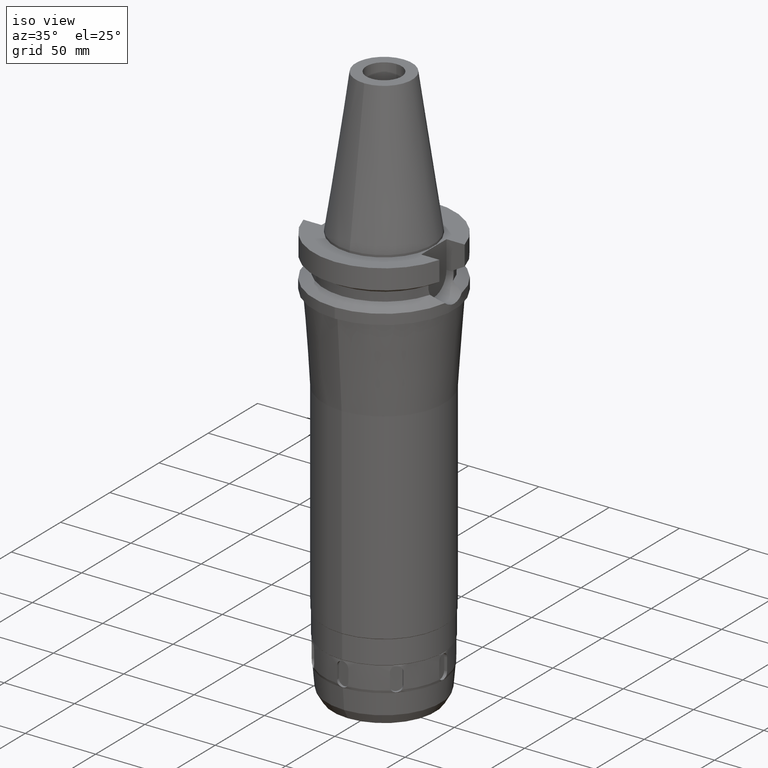
[diagram: clean part render]
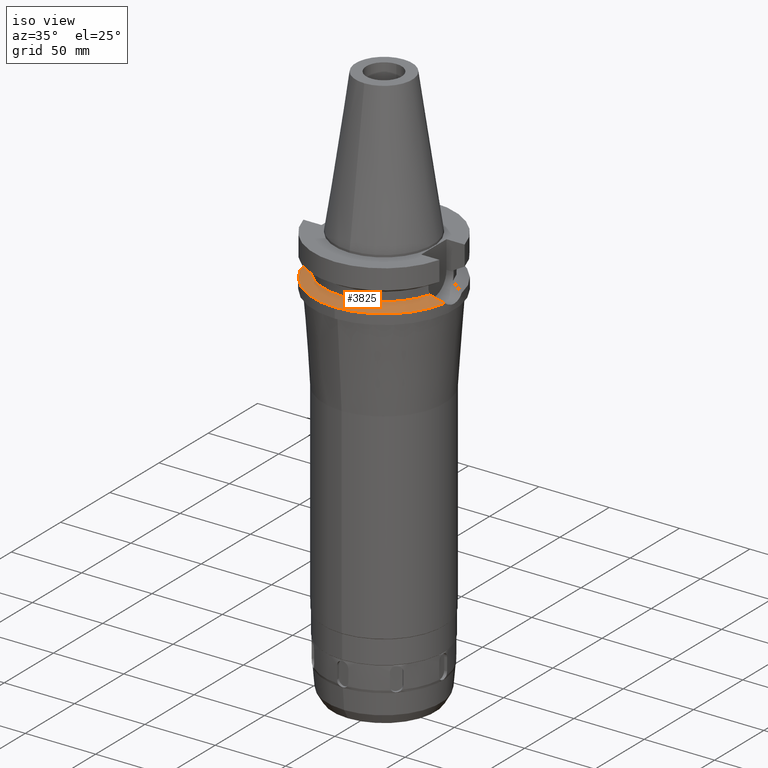
[diagram: same view with one face highlighted and labeled with its STEP entity id]
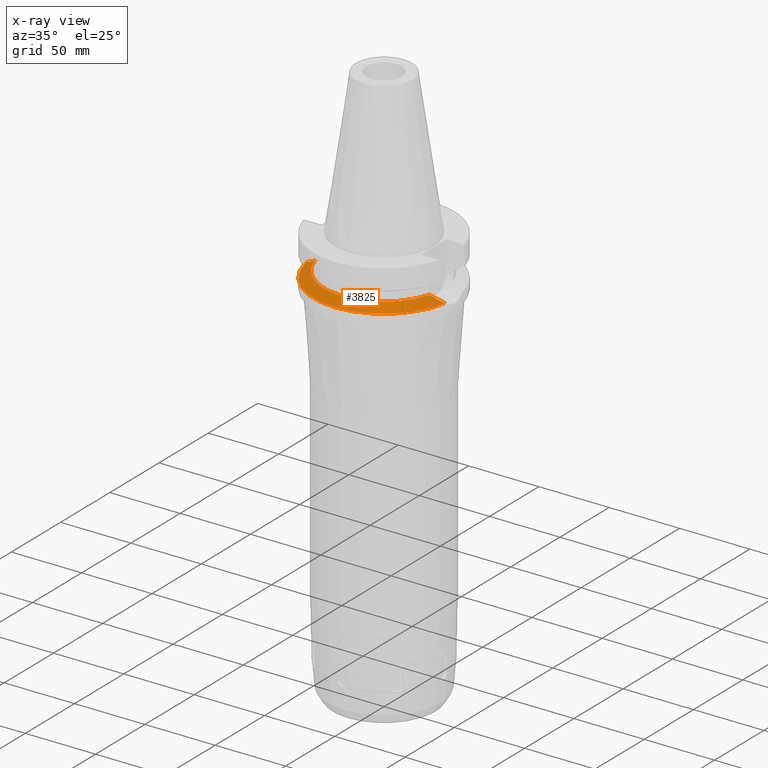
[diagram: x-ray of the same camera — body ghosted, the highlighted face saturated]
A machine part, iso view. The second image highlights one B-rep face of the part: STEP entity #3825.
The next image is the same camera in x-ray: the body ghosted, the highlighted face saturated — about 0% of this face is hidden behind the body in this view.
In plain terms, the highlighted conical surface has half-angle 60 deg.
Its self-contained STEP definition (entity closure, byte-faithful):
#1448=CARTESIAN_POINT('',(4.926250064874E1,-8.556052234130E0,
-3.073730776427E1));
#1489=CARTESIAN_POINT('',(-4.926250064874E1,-8.556052234130E0,
-3.073730776427E1));
#1490=CARTESIAN_POINT('',(-4.853018599767E1,-8.976302676406E0,
-3.036226141926E1));
#1491=CARTESIAN_POINT('',(-4.692923477687E1,-9.783404503767E0,
-2.954153323723E1));
#1492=CARTESIAN_POINT('',(-4.416446181123E1,-1.084708766056E1,
-2.812001566872E1));
#1493=CARTESIAN_POINT('',(-4.200303162851E1,-1.145773596299E1,
-2.700412340129E1));
#1494=CARTESIAN_POINT('',(-4.085052569294E1,-1.172538061688E1,
-2.640718074535E1));
#1499=CARTESIAN_POINT('',(0.E0,0.E0,-2.640718074535E1));
#1500=DIRECTION('',(0.E0,0.E0,1.E0));
#1501=DIRECTION('',(-9.611888398338E-1,-2.758913086325E-1,0.E0));
#1502=AXIS2_PLACEMENT_3D('',#1499,#1500,#1501);
#1507=CARTESIAN_POINT('',(0.E0,0.E0,-2.640718074535E1));
#1508=DIRECTION('',(0.E0,0.E0,1.E0));
#1509=DIRECTION('',(0.E0,-1.E0,0.E0));
#1510=AXIS2_PLACEMENT_3D('',#1507,#1508,#1509);
#1515=CARTESIAN_POINT('',(4.085052569294E1,-1.172538061688E1,
-2.640718074535E1));
#1516=CARTESIAN_POINT('',(4.197904759353E1,-1.146330573799E1,
-2.699170082446E1));
#1517=CARTESIAN_POINT('',(4.410907742020E1,-1.086410209639E1,
-2.809146244678E1));
#1518=CARTESIAN_POINT('',(4.686353585245E1,-9.812733512521E0,
-2.950781695802E1));
#1519=CARTESIAN_POINT('',(4.850320938683E1,-8.991783634785E0,
-3.034844566495E1));
#1520=CARTESIAN_POINT('',(4.926250064874E1,-8.556052234130E0,
-3.073730776427E1));
#1525=CARTESIAN_POINT('',(0.E0,0.E0,-3.073730776427E1));
#1526=DIRECTION('',(0.E0,0.E0,-1.E0));
#1527=DIRECTION('',(9.852500129747E-1,-1.711210446826E-1,0.E0));
#1528=AXIS2_PLACEMENT_3D('',#1525,#1526,#1527);
#1533=CARTESIAN_POINT('',(0.E0,0.E0,-3.073730776427E1));
#1534=DIRECTION('',(0.E0,0.E0,-1.E0));
#1535=DIRECTION('',(0.E0,-1.E0,0.E0));
#1536=AXIS2_PLACEMENT_3D('',#1533,#1534,#1535);
#2693=VERTEX_POINT('',#1448);
#2696=CARTESIAN_POINT('',(0.E0,-5.E1,-3.073730776427E1));
#2697=VERTEX_POINT('',#2696);
#2698=VERTEX_POINT('',#1515);
#2709=VERTEX_POINT('',#1489);
#2710=VERTEX_POINT('',#1494);
#2711=CARTESIAN_POINT('',(0.E0,-4.25E1,-2.640718074535E1));
#2712=VERTEX_POINT('',#2711);
#3808=CARTESIAN_POINT('',(0.E0,0.E0,-2.857224425481E1));
#3809=DIRECTION('',(0.E0,0.E0,-1.E0));
#3810=DIRECTION('',(0.E0,-1.E0,0.E0));
#3811=AXIS2_PLACEMENT_3D('',#3808,#3809,#3810);
#3812=CONICAL_SURFACE('',#3811,4.625E1,6.E1);
#3814=ORIENTED_EDGE('',*,*,#3813,.T.);
#3816=ORIENTED_EDGE('',*,*,#3815,.T.);
#3818=ORIENTED_EDGE('',*,*,#3817,.T.);
#3819=ORIENTED_EDGE('',*,*,#3789,.T.);
#3820=ORIENTED_EDGE('',*,*,#3777,.T.);
#3822=ORIENTED_EDGE('',*,*,#3821,.T.);
#3823=EDGE_LOOP('',(#3814,#3816,#3818,#3819,#3820,#3822));
#3824=FACE_OUTER_BOUND('',#3823,.F.);
#1495=B_SPLINE_CURVE_WITH_KNOTS('',3,(#1489,#1490,#1491,#1492,#1493,#1494),
.UNSPECIFIED.,.F.,.F.,(4,1,1,4),(0.E0,3.333333333333E-1,6.666666666667E-1,1.E0),
.UNSPECIFIED.);
#1503=CIRCLE('',#1502,4.25E1);
#1511=CIRCLE('',#1510,4.25E1);
#1521=B_SPLINE_CURVE_WITH_KNOTS('',3,(#1515,#1516,#1517,#1518,#1519,#1520),
.UNSPECIFIED.,.F.,.F.,(4,1,1,4),(0.E0,3.333333333333E-1,6.666666666667E-1,1.E0),
.UNSPECIFIED.);
#1529=CIRCLE('',#1528,5.E1);
#1537=CIRCLE('',#1536,5.E1);
#3777=EDGE_CURVE('',#2693,#2697,#1529,.T.);
#3789=EDGE_CURVE('',#2698,#2693,#1521,.T.);
#3813=EDGE_CURVE('',#2709,#2710,#1495,.T.);
#3815=EDGE_CURVE('',#2710,#2712,#1503,.T.);
#3817=EDGE_CURVE('',#2712,#2698,#1511,.T.);
#3821=EDGE_CURVE('',#2697,#2709,#1537,.T.);
#3825=ADVANCED_FACE('',(#3824),#3812,.T.);